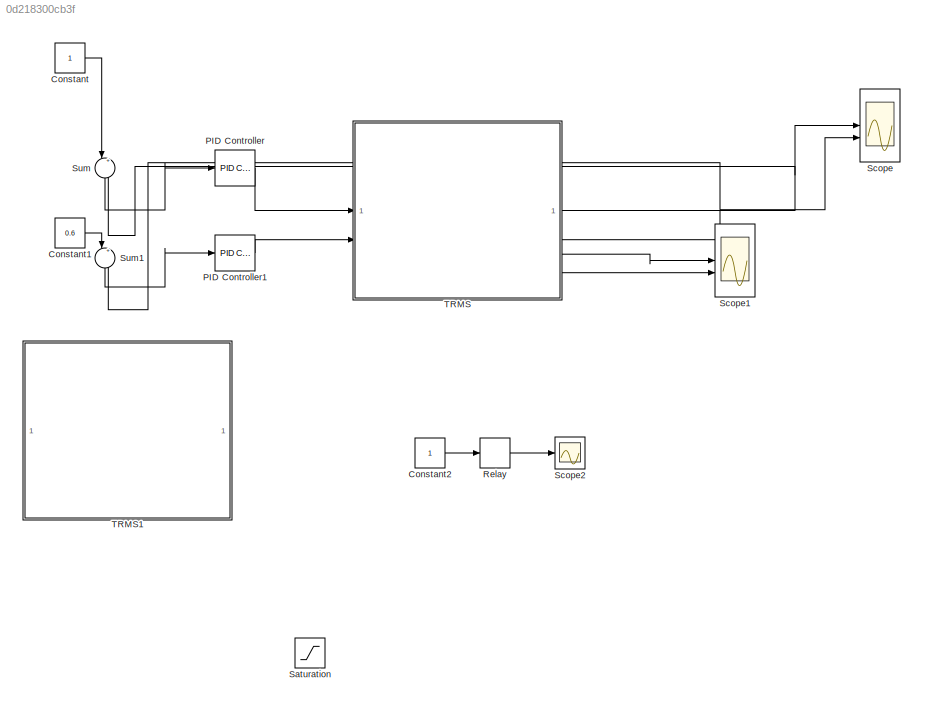
MODEL slx_0d218300cb3f
KIND model
CONFIG AbsTol = auto
CONFIG EnableMultiTasking = off
CONFIG FixedStep = 1e-5
CONFIG MaxStep = auto
CONFIG MinStep = auto
CONFIG RelTol = 1e-3
CONFIG SampleTimeConstraint = Unconstrained
CONFIG SolverName = FixedStepAuto
CONFIG StartTime = 0.0
CONFIG StopTime = 70
BLOCK [Constant] Constant
BLOCK [Constant] Constant1
  Value = 0.6
BLOCK [Constant] Constant2
BLOCK [Reference] PID Controller  REF=slpidlib/PID Controller
  LibrarySourceBlock = simulink/Continuous/PID Controller
  SourceBlock = slpidlib/PID Controller
  SourceType = PID 1dof
BLOCK [Reference] PID Controller1  REF=slpidlib/PID Controller
  LibrarySourceBlock = simulink/Continuous/PID Controller
  SourceBlock = slpidlib/PID Controller
  SourceType = PID 1dof
BLOCK [Relay] Relay
  OffOutputValue = -1
  OffSwitchValue = -0.01
  OnSwitchValue = 0.01
BLOCK [Saturate] Saturation
BLOCK [Scope] Scope
  Floating = off
  NumInputPorts = 2
  ScopeSpecificationString = Simulink.scopes.TimeScopeBlockCfg('CurrentConfiguration', extmgr.ConfigurationSet(extmgr.Configuration('Core','General UI',true),extmgr.Configuration('Core','Source UI',true),extmgr.Configuration('Sources','WiredSimulink',true),extmgr.Configuration('Visuals','Time Domain',true,'SerializedDisplays',{struct('MinYLimReal','-0.12437','MaxYLimReal','1.11933','YLabelReal','','MinYLimMag','0.00000','MaxY...<+1391ch>
BLOCK [Scope] Scope1
  Floating = off
  NumInputPorts = 2
  ScopeSpecificationString = Simulink.scopes.TimeScopeBlockCfg('CurrentConfiguration', extmgr.ConfigurationSet(extmgr.Configuration('Core','General UI',true),extmgr.Configuration('Core','Source UI',true),extmgr.Configuration('Sources','WiredSimulink',true,'DataLoggingVariableName','ScopeData1'),extmgr.Configuration('Visuals','Time Domain',true,'SerializedDisplays',{struct('MinYLimReal','-0.33139','MaxYLimReal','1.74532','YLab...<+1426ch>
BLOCK [Scope] Scope2
  Floating = off
  NumInputPorts = 1
  ScopeSpecificationString = Simulink.scopes.TimeScopeBlockCfg('CurrentConfiguration', extmgr.ConfigurationSet(extmgr.Configuration('Core','General UI',true),extmgr.Configuration('Core','Source UI',true),extmgr.Configuration('Sources','WiredSimulink',true,'DataLoggingVariableName','ScopeData2'),extmgr.Configuration('Visuals','Time Domain',true,'SerializedDisplays',{struct('MinYLimReal','0.9','MaxYLimReal','1.1','YLabelReal','...<+1390ch>
BLOCK [Sum] Sum
  Inputs = |+-
  NameLocation = left
BLOCK [Sum] Sum1
  Inputs = |+-
  NameLocation = left
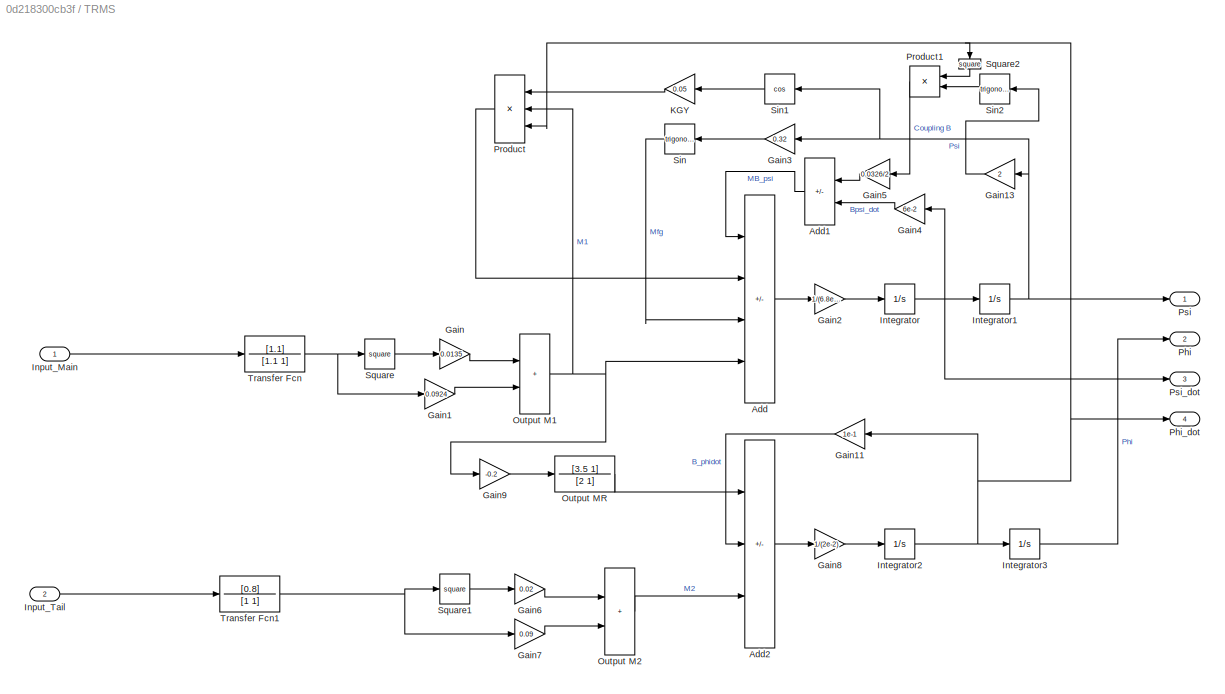
BLOCK [SubSystem] TRMS
BLOCK [Sum] TRMS/Add
  IconShape = rectangular
  Inputs = ---+
BLOCK [Sum] TRMS/Add1
  IconShape = rectangular
  Inputs = -+
  NameLocation = top
BLOCK [Sum] TRMS/Add2
  IconShape = rectangular
  Inputs = --+
BLOCK [Gain] TRMS/Gain
  Gain = 0.0135
BLOCK [Gain] TRMS/Gain1
  Gain = 0.0924
BLOCK [Gain] TRMS/Gain11
  Gain = 1e-1
  NameLocation = top
BLOCK [Gain] TRMS/Gain13
  Gain = 2
  NameLocation = top
BLOCK [Gain] TRMS/Gain2
  Gain = 1/(6.8e-2)
BLOCK [Gain] TRMS/Gain3
  Gain = 0.32
  NameLocation = top
BLOCK [Gain] TRMS/Gain4
  Gain = 6e-2
  NameLocation = top
BLOCK [Gain] TRMS/Gain5
  Gain = 0.0326/2
  NameLocation = top
BLOCK [Gain] TRMS/Gain6
  Gain = 0.02
BLOCK [Gain] TRMS/Gain7
  Gain = 0.09
BLOCK [Gain] TRMS/Gain8
  Gain = 1/(2e-2)
BLOCK [Gain] TRMS/Gain9
  Gain = -0.2
BLOCK [Inport] TRMS/Input_Main
BLOCK [Inport] TRMS/Input_Tail
  Port = 2
BLOCK [Integrator] TRMS/Integrator
BLOCK [Integrator] TRMS/Integrator1
BLOCK [Integrator] TRMS/Integrator2
BLOCK [Integrator] TRMS/Integrator3
BLOCK [Gain] TRMS/KGY
  Gain = 0.05
  NameLocation = top
BLOCK [Sum] TRMS/Output M1
  IconShape = rectangular
BLOCK [Sum] TRMS/Output M2
  IconShape = rectangular
BLOCK [TransferFcn] TRMS/Output MR
  Denominator = [2 1]
  Numerator = [3.5 1]
BLOCK [Outport] TRMS/Phi
  Port = 2
BLOCK [Outport] TRMS/Phi_dot
  Port = 4
BLOCK [Product] TRMS/Product
  Inputs = 3
  NameLocation = top
BLOCK [Product] TRMS/Product1
  NameLocation = top
BLOCK [Outport] TRMS/Psi
BLOCK [Outport] TRMS/Psi_dot
  Port = 3
BLOCK [Trigonometry] TRMS/Sin
  NameLocation = top
BLOCK [Trigonometry] TRMS/Sin1
  NameLocation = top
  Operator = cos
BLOCK [Trigonometry] TRMS/Sin2
  NameLocation = top
BLOCK [Math] TRMS/Square
  Operator = square
BLOCK [Math] TRMS/Square1
  Operator = square
BLOCK [Math] TRMS/Square2
  NameLocation = left
  Operator = square
BLOCK [TransferFcn] TRMS/Transfer Fcn
  Denominator = [1.1 1]
  Numerator = [1.1]
BLOCK [TransferFcn] TRMS/Transfer Fcn1
  Denominator = [1 1]
  Numerator = [0.8]
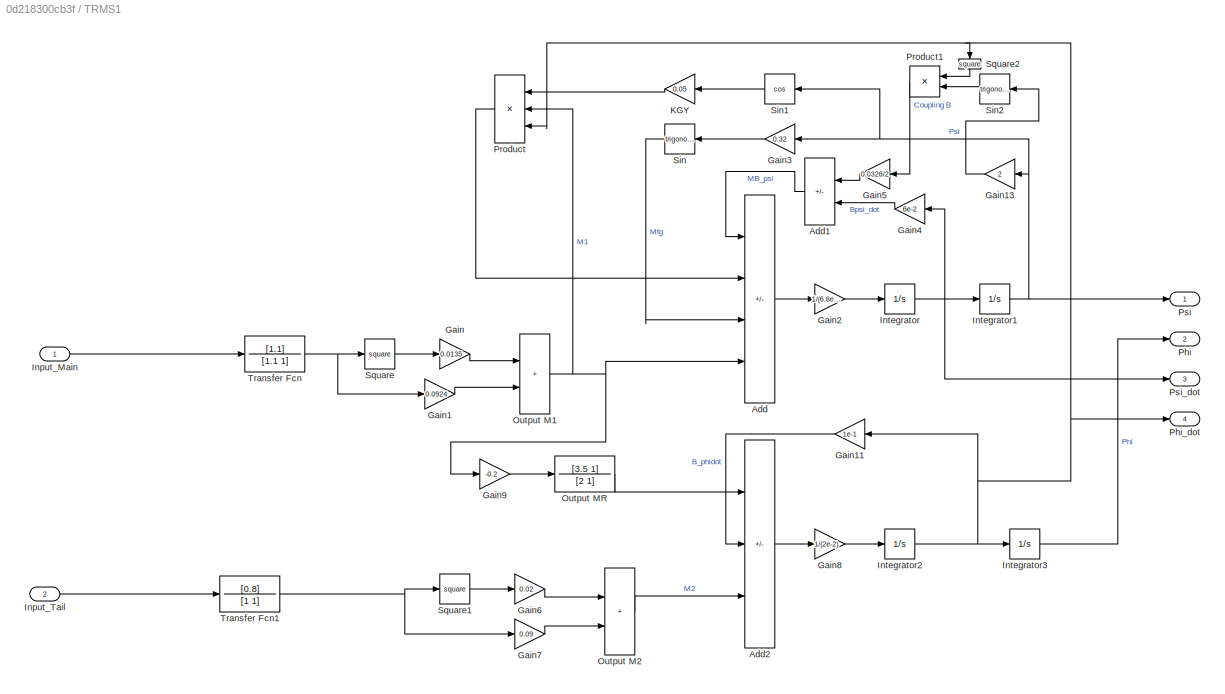
BLOCK [SubSystem] TRMS1
BLOCK [Sum] TRMS1/Add
  IconShape = rectangular
  Inputs = ---+
BLOCK [Sum] TRMS1/Add1
  IconShape = rectangular
  Inputs = -+
  NameLocation = top
BLOCK [Sum] TRMS1/Add2
  IconShape = rectangular
  Inputs = --+
BLOCK [Gain] TRMS1/Gain
  Gain = 0.0135
BLOCK [Gain] TRMS1/Gain1
  Gain = 0.0924
BLOCK [Gain] TRMS1/Gain11
  Gain = 1e-1
  NameLocation = top
BLOCK [Gain] TRMS1/Gain13
  Gain = 2
  NameLocation = top
BLOCK [Gain] TRMS1/Gain2
  Gain = 1/(6.8e-2)
BLOCK [Gain] TRMS1/Gain3
  Gain = 0.32
  NameLocation = top
BLOCK [Gain] TRMS1/Gain4
  Gain = 6e-2
  NameLocation = top
BLOCK [Gain] TRMS1/Gain5
  Gain = 0.0326/2
  NameLocation = top
BLOCK [Gain] TRMS1/Gain6
  Gain = 0.02
BLOCK [Gain] TRMS1/Gain7
  Gain = 0.09
BLOCK [Gain] TRMS1/Gain8
  Gain = 1/(2e-2)
BLOCK [Gain] TRMS1/Gain9
  Gain = -0.2
BLOCK [Inport] TRMS1/Input_Main
BLOCK [Inport] TRMS1/Input_Tail
  Port = 2
BLOCK [Integrator] TRMS1/Integrator
BLOCK [Integrator] TRMS1/Integrator1
BLOCK [Integrator] TRMS1/Integrator2
BLOCK [Integrator] TRMS1/Integrator3
BLOCK [Gain] TRMS1/KGY
  Gain = 0.05
  NameLocation = top
BLOCK [Sum] TRMS1/Output M1
  IconShape = rectangular
BLOCK [Sum] TRMS1/Output M2
  IconShape = rectangular
BLOCK [TransferFcn] TRMS1/Output MR
  Denominator = [2 1]
  Numerator = [3.5 1]
BLOCK [Outport] TRMS1/Phi
  Port = 2
BLOCK [Outport] TRMS1/Phi_dot
  Port = 4
BLOCK [Product] TRMS1/Product
  Inputs = 3
  NameLocation = top
BLOCK [Product] TRMS1/Product1
  NameLocation = top
BLOCK [Outport] TRMS1/Psi
BLOCK [Outport] TRMS1/Psi_dot
  Port = 3
BLOCK [Trigonometry] TRMS1/Sin
  NameLocation = top
BLOCK [Trigonometry] TRMS1/Sin1
  NameLocation = top
  Operator = cos
BLOCK [Trigonometry] TRMS1/Sin2
  NameLocation = top
BLOCK [Math] TRMS1/Square
  Operator = square
BLOCK [Math] TRMS1/Square1
  Operator = square
BLOCK [Math] TRMS1/Square2
  NameLocation = left
  Operator = square
BLOCK [TransferFcn] TRMS1/Transfer Fcn
  Denominator = [1.1 1]
  Numerator = [1.1]
BLOCK [TransferFcn] TRMS1/Transfer Fcn1
  Denominator = [1 1]
  Numerator = [0.8]
LINE Constant1:1 -> Sum1:1
LINE Constant2:1 -> Relay:1
LINE Constant:1 -> Sum:1
LINE PID Controller1:1 -> TRMS:2
LINE PID Controller:1 -> TRMS:1
LINE Relay:1 -> Scope2:1
LINE Sum1:1 -> PID Controller1:1
LINE Sum:1 -> PID Controller:1
LINE TRMS/Add1:1 -> TRMS/Add:1
LINE TRMS/Add2:1 -> TRMS/Gain8:1
LINE TRMS/Add:1 -> TRMS/Gain2:1
LINE TRMS/Gain11:1 -> TRMS/Add2:2
LINE TRMS/Gain13:1 -> TRMS/Sin2:1
LINE TRMS/Gain1:1 -> TRMS/Output M1:2
LINE TRMS/Gain2:1 -> TRMS/Integrator:1
LINE TRMS/Gain3:1 -> TRMS/Sin:1
LINE TRMS/Gain4:1 -> TRMS/Add1:2
LINE TRMS/Gain5:1 -> TRMS/Add1:1
LINE TRMS/Gain6:1 -> TRMS/Output M2:1
LINE TRMS/Gain7:1 -> TRMS/Output M2:2
LINE TRMS/Gain8:1 -> TRMS/Integrator2:1
LINE TRMS/Gain9:1 -> TRMS/Output MR:1
LINE TRMS/Gain:1 -> TRMS/Output M1:1
LINE TRMS/Input_Main:1 -> TRMS/Transfer Fcn:1
LINE TRMS/Input_Tail:1 -> TRMS/Transfer Fcn1:1
NET TRMS/Integrator1:1 -> TRMS/Gain13:1, TRMS/Gain3:1, TRMS/Psi:1, TRMS/Sin1:1
NET TRMS/Integrator2:1 -> TRMS/Gain11:1, TRMS/Integrator3:1, TRMS/Phi_dot:1, TRMS/Product:3, TRMS/Square2:1
LINE TRMS/Integrator3:1 -> TRMS/Phi:1
NET TRMS/Integrator:1 -> TRMS/Gain4:1, TRMS/Integrator1:1, TRMS/Psi_dot:1
LINE TRMS/KGY:1 -> TRMS/Product:1
NET TRMS/Output M1:1 -> TRMS/Add:4, TRMS/Gain9:1, TRMS/Product:2
LINE TRMS/Output M2:1 -> TRMS/Add2:3
LINE TRMS/Output MR:1 -> TRMS/Add2:1
LINE TRMS/Product1:1 -> TRMS/Gain5:1
LINE TRMS/Product:1 -> TRMS/Add:2
LINE TRMS/Sin1:1 -> TRMS/KGY:1
LINE TRMS/Sin2:1 -> TRMS/Product1:2
LINE TRMS/Sin:1 -> TRMS/Add:3
LINE TRMS/Square1:1 -> TRMS/Gain6:1
LINE TRMS/Square2:1 -> TRMS/Product1:1
LINE TRMS/Square:1 -> TRMS/Gain:1
NET TRMS/Transfer Fcn1:1 -> TRMS/Gain7:1, TRMS/Square1:1
NET TRMS/Transfer Fcn:1 -> TRMS/Gain1:1, TRMS/Square:1
LINE TRMS1/Add1:1 -> TRMS1/Add:1
LINE TRMS1/Add2:1 -> TRMS1/Gain8:1
LINE TRMS1/Add:1 -> TRMS1/Gain2:1
LINE TRMS1/Gain11:1 -> TRMS1/Add2:2
LINE TRMS1/Gain13:1 -> TRMS1/Sin2:1
LINE TRMS1/Gain1:1 -> TRMS1/Output M1:2
LINE TRMS1/Gain2:1 -> TRMS1/Integrator:1
LINE TRMS1/Gain3:1 -> TRMS1/Sin:1
LINE TRMS1/Gain4:1 -> TRMS1/Add1:2
LINE TRMS1/Gain5:1 -> TRMS1/Add1:1
LINE TRMS1/Gain6:1 -> TRMS1/Output M2:1
LINE TRMS1/Gain7:1 -> TRMS1/Output M2:2
LINE TRMS1/Gain8:1 -> TRMS1/Integrator2:1
LINE TRMS1/Gain9:1 -> TRMS1/Output MR:1
LINE TRMS1/Gain:1 -> TRMS1/Output M1:1
LINE TRMS1/Input_Main:1 -> TRMS1/Transfer Fcn:1
LINE TRMS1/Input_Tail:1 -> TRMS1/Transfer Fcn1:1
NET TRMS1/Integrator1:1 -> TRMS1/Gain13:1, TRMS1/Gain3:1, TRMS1/Psi:1, TRMS1/Sin1:1
NET TRMS1/Integrator2:1 -> TRMS1/Gain11:1, TRMS1/Integrator3:1, TRMS1/Phi_dot:1, TRMS1/Product:3, TRMS1/Square2:1
LINE TRMS1/Integrator3:1 -> TRMS1/Phi:1
NET TRMS1/Integrator:1 -> TRMS1/Gain4:1, TRMS1/Integrator1:1, TRMS1/Psi_dot:1
LINE TRMS1/KGY:1 -> TRMS1/Product:1
NET TRMS1/Output M1:1 -> TRMS1/Add:4, TRMS1/Gain9:1, TRMS1/Product:2
LINE TRMS1/Output M2:1 -> TRMS1/Add2:3
LINE TRMS1/Output MR:1 -> TRMS1/Add2:1
LINE TRMS1/Product1:1 -> TRMS1/Gain5:1
LINE TRMS1/Product:1 -> TRMS1/Add:2
LINE TRMS1/Sin1:1 -> TRMS1/KGY:1
LINE TRMS1/Sin2:1 -> TRMS1/Product1:2
LINE TRMS1/Sin:1 -> TRMS1/Add:3
LINE TRMS1/Square1:1 -> TRMS1/Gain6:1
LINE TRMS1/Square2:1 -> TRMS1/Product1:1
LINE TRMS1/Square:1 -> TRMS1/Gain:1
NET TRMS1/Transfer Fcn1:1 -> TRMS1/Gain7:1, TRMS1/Square1:1
NET TRMS1/Transfer Fcn:1 -> TRMS1/Gain1:1, TRMS1/Square:1
NET TRMS:1 -> Scope:1, Sum:2
NET TRMS:2 -> Scope:2, Sum1:2
LINE TRMS:3 -> Scope1:1
LINE TRMS:4 -> Scope1:2
note: NET lines group one-source signal fan-out (src -> all destinations, sorted); 1:1 wires keep LINE
